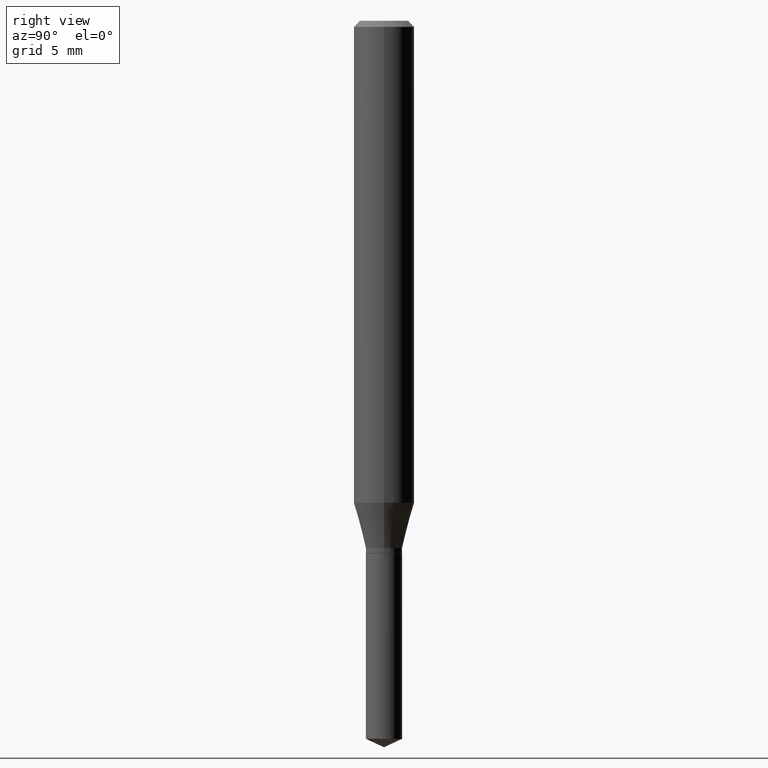
[diagram: clean part render]
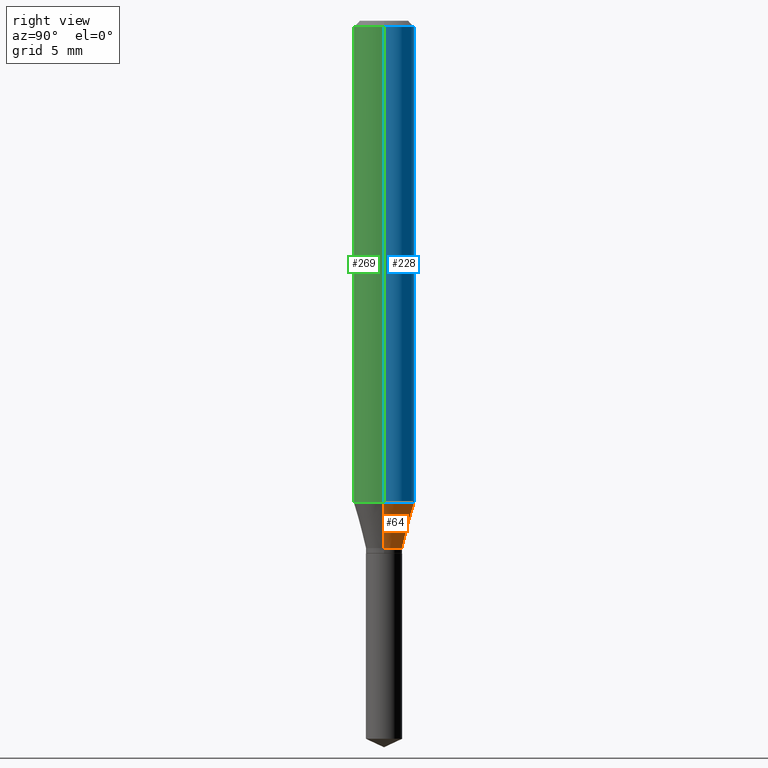
[diagram: same view with three faces highlighted in distinct colors, each labeled with its STEP entity id]
A machine part, right view with three faces highlighted in distinct colors.
Their STEP definitions:

[orange] entity #64 — the highlighted conical surface has half-angle 15 deg.
#6 = ORIENTED_EDGE ( 'NONE', *, *, #439, .T. ) ;
#11 = CARTESIAN_POINT ( 'NONE',  ( 0.03740000000000000269, -4.062687685877884033E-15, -1.088800000000000212 ) ) ;
#23 = VECTOR ( 'NONE', #59, 39.37007874015747433 ) ;
#25 = LINE ( 'NONE', #398, #23 ) ;
#27 = CIRCLE ( 'NONE', #471, 0.03740000000000000269 ) ;
#51 = DIRECTION ( 'NONE',  ( 0.2588190451025213501, 1.565188264969621968E-15, 0.9659258262890682012 ) ) ;
#59 = DIRECTION ( 'NONE',  ( -0.2588190451025213501, 5.211531920934551042E-15, 0.9659258262890682012 ) ) ;
#64 = ADVANCED_FACE ( 'NONE', ( #291 ), #180, .T. ) ;
#108 = EDGE_LOOP ( 'NONE', ( #6, #210, #114, #162 ) ) ;
#109 = VERTEX_POINT ( 'NONE', #185 ) ;
#114 = ORIENTED_EDGE ( 'NONE', *, *, #411, .F. ) ;
#130 = DIRECTION ( 'NONE',  ( 1.000000000000000000, -6.982962677686264344E-15, 0.000000000000000000 ) ) ;
#160 = VERTEX_POINT ( 'NONE', #11 ) ;
#162 = ORIENTED_EDGE ( 'NONE', *, *, #237, .F. ) ;
#180 = CONICAL_SURFACE ( 'NONE', #265, 0.03740000000000000269, 0.2617993877991500740 ) ;
#181 = CIRCLE ( 'NONE', #255, 0.06250000000000012490 ) ;
#185 = CARTESIAN_POINT ( 'NONE',  ( -0.03740000000000000269, -3.554461323720950725E-15, -1.088800000000000212 ) ) ;
#203 = LINE ( 'NONE', #287, #333 ) ;
#210 = ORIENTED_EDGE ( 'NONE', *, *, #262, .T. ) ;
#232 = CARTESIAN_POINT ( 'NONE',  ( 2.662626436174376772E-29, -3.801524881732417633E-15, -1.088800000000000212 ) ) ;
#237 = EDGE_CURVE ( 'NONE', #160, #427, #203, .T. ) ;
#255 = AXIS2_PLACEMENT_3D ( 'NONE', #329, #474, #130 ) ;
#262 = EDGE_CURVE ( 'NONE', #109, #321, #25, .T. ) ;
#265 = AXIS2_PLACEMENT_3D ( 'NONE', #433, #334, #272 ) ;
#272 = DIRECTION ( 'NONE',  ( 1.000000000000000000, -6.982962677686261977E-15, 0.000000000000000000 ) ) ;
#287 = CARTESIAN_POINT ( 'NONE',  ( 0.03740000000000000269, -4.062687685877884033E-15, -1.088800000000000212 ) ) ;
#291 = FACE_OUTER_BOUND ( 'NONE', #108, .T. ) ;
#321 = VERTEX_POINT ( 'NONE', #461 ) ;
#329 = CARTESIAN_POINT ( 'NONE',  ( 2.433548428965882427E-29, -3.474462199401361914E-15, -0.9951255247300211382 ) ) ;
#333 = VECTOR ( 'NONE', #51, 39.37007874015747433 ) ;
#334 = DIRECTION ( 'NONE',  ( -2.445468806185136597E-29, 3.491481338843145583E-15, 1.000000000000000000 ) ) ;
#336 = CARTESIAN_POINT ( 'NONE',  ( 0.06250000000000012490, -3.910897366756753978E-15, -0.9951255247300211382 ) ) ;
#379 = DIRECTION ( 'NONE',  ( -2.445468806185136597E-29, 3.491481338843145583E-15, 1.000000000000000000 ) ) ;
#398 = CARTESIAN_POINT ( 'NONE',  ( -0.03740000000000000269, -3.535781898558140243E-15, -1.088800000000000212 ) ) ;
#401 = DIRECTION ( 'NONE',  ( 1.000000000000000000, -6.982962677686261977E-15, 0.000000000000000000 ) ) ;
#411 = EDGE_CURVE ( 'NONE', #427, #321, #181, .T. ) ;
#427 = VERTEX_POINT ( 'NONE', #336 ) ;
#433 = CARTESIAN_POINT ( 'NONE',  ( 2.662626436174376772E-29, -3.801524881732417633E-15, -1.088800000000000212 ) ) ;
#439 = EDGE_CURVE ( 'NONE', #160, #109, #27, .T. ) ;
#461 = CARTESIAN_POINT ( 'NONE',  ( -0.06250000000000012490, -3.030372989551298509E-15, -0.9951255247300211382 ) ) ;
#471 = AXIS2_PLACEMENT_3D ( 'NONE', #232, #379, #401 ) ;
#474 = DIRECTION ( 'NONE',  ( -2.445468806185136597E-29, 3.491481338843145583E-15, 1.000000000000000000 ) ) ;

[blue] entity #228 — the highlighted cylindrical surface (edge-blend (fillet) strip) has radius 1.5875 mm, axis along (-0, 0, 1).
#14 = CARTESIAN_POINT ( 'NONE',  ( 0.000000000000000000, 0.000000000000000000, 0.000000000000000000 ) ) ;
#16 = AXIS2_PLACEMENT_3D ( 'NONE', #14, #353, #118 ) ;
#35 = EDGE_CURVE ( 'NONE', #427, #44, #368, .T. ) ;
#44 = VERTEX_POINT ( 'NONE', #359 ) ;
#72 = ORIENTED_EDGE ( 'NONE', *, *, #411, .T. ) ;
#77 = EDGE_LOOP ( 'NONE', ( #72, #324, #219, #297 ) ) ;
#82 = LINE ( 'NONE', #209, #365 ) ;
#103 = VECTOR ( 'NONE', #128, 39.37007874015748143 ) ;
#113 = CIRCLE ( 'NONE', #470, 0.06250000000000000000 ) ;
#118 = DIRECTION ( 'NONE',  ( 1.000000000000000000, -6.982962677686267499E-15, 4.876176775795936353E-29 ) ) ;
#125 = EDGE_CURVE ( 'NONE', #44, #198, #113, .T. ) ;
#128 = DIRECTION ( 'NONE',  ( -2.445468806185136877E-29, 3.491481338843145188E-15, 1.000000000000000000 ) ) ;
#130 = DIRECTION ( 'NONE',  ( 1.000000000000000000, -6.982962677686264344E-15, 0.000000000000000000 ) ) ;
#141 = DIRECTION ( 'NONE',  ( 1.000000000000000000, -6.982962677686266711E-15, 0.000000000000000000 ) ) ;
#181 = CIRCLE ( 'NONE', #255, 0.06250000000000012490 ) ;
#194 = FACE_OUTER_BOUND ( 'NONE', #77, .T. ) ;
#198 = VERTEX_POINT ( 'NONE', #259 ) ;
#209 = CARTESIAN_POINT ( 'NONE',  ( -0.06250000000000005551, 4.440892098500630106E-16, -3.074334431409318916E-30 ) ) ;
#219 = ORIENTED_EDGE ( 'NONE', *, *, #125, .F. ) ;
#228 = ADVANCED_FACE ( 'NONE', ( #194 ), #247, .T. ) ;
#247 = CYLINDRICAL_SURFACE ( 'NONE', #16, 0.06250000000000005551 ) ;
#255 = AXIS2_PLACEMENT_3D ( 'NONE', #329, #474, #130 ) ;
#259 = CARTESIAN_POINT ( 'NONE',  ( -0.06250000000000000000, -1.314963648218386938E-15, -0.01250000000000008223 ) ) ;
#297 = ORIENTED_EDGE ( 'NONE', *, *, #35, .F. ) ;
#321 = VERTEX_POINT ( 'NONE', #461 ) ;
#323 = CARTESIAN_POINT ( 'NONE',  ( 0.06250000000000005551, -4.364351673553921131E-16, 3.047610484872463023E-30 ) ) ;
#324 = ORIENTED_EDGE ( 'NONE', *, *, #399, .T. ) ;
#329 = CARTESIAN_POINT ( 'NONE',  ( 2.433548428965882427E-29, -3.474462199401361914E-15, -0.9951255247300211382 ) ) ;
#336 = CARTESIAN_POINT ( 'NONE',  ( 0.06250000000000012490, -3.910897366756753978E-15, -0.9951255247300211382 ) ) ;
#338 = CARTESIAN_POINT ( 'NONE',  ( 3.056836007731440977E-31, -4.364351673553961068E-17, -0.01250000000000008223 ) ) ;
#353 = DIRECTION ( 'NONE',  ( -2.445468806185136597E-29, 3.491481338843145583E-15, 1.000000000000000000 ) ) ;
#359 = CARTESIAN_POINT ( 'NONE',  ( 0.06250000000000000000, -4.800786840909312308E-16, -0.01250000000000008223 ) ) ;
#365 = VECTOR ( 'NONE', #396, 39.37007874015748143 ) ;
#368 = LINE ( 'NONE', #323, #103 ) ;
#396 = DIRECTION ( 'NONE',  ( -2.445468806185136877E-29, 3.491481338843145188E-15, 1.000000000000000000 ) ) ;
#399 = EDGE_CURVE ( 'NONE', #321, #198, #82, .T. ) ;
#411 = EDGE_CURVE ( 'NONE', #427, #321, #181, .T. ) ;
#427 = VERTEX_POINT ( 'NONE', #336 ) ;
#461 = CARTESIAN_POINT ( 'NONE',  ( -0.06250000000000012490, -3.030372989551298509E-15, -0.9951255247300211382 ) ) ;
#470 = AXIS2_PLACEMENT_3D ( 'NONE', #338, #483, #141 ) ;
#474 = DIRECTION ( 'NONE',  ( -2.445468806185136597E-29, 3.491481338843145583E-15, 1.000000000000000000 ) ) ;
#483 = DIRECTION ( 'NONE',  ( -2.445468806185136597E-29, 3.491481338843145583E-15, 1.000000000000000000 ) ) ;

[green] entity #269 — the highlighted cylindrical surface (edge-blend (fillet) strip) has radius 1.5875 mm, axis along (-0, 0, 1).
#5 = EDGE_CURVE ( 'NONE', #321, #427, #157, .T. ) ;
#22 = DIRECTION ( 'NONE',  ( -2.445468806185136597E-29, 3.491481338843145583E-15, 1.000000000000000000 ) ) ;
#30 = DIRECTION ( 'NONE',  ( -2.445468806185136597E-29, 3.491481338843145583E-15, 1.000000000000000000 ) ) ;
#35 = EDGE_CURVE ( 'NONE', #427, #44, #368, .T. ) ;
#44 = VERTEX_POINT ( 'NONE', #359 ) ;
#57 = CARTESIAN_POINT ( 'NONE',  ( 2.433548428965882427E-29, -3.474462199401361914E-15, -0.9951255247300211382 ) ) ;
#79 = ORIENTED_EDGE ( 'NONE', *, *, #399, .F. ) ;
#82 = LINE ( 'NONE', #209, #365 ) ;
#103 = VECTOR ( 'NONE', #128, 39.37007874015748143 ) ;
#111 = EDGE_LOOP ( 'NONE', ( #79, #119, #464, #257 ) ) ;
#119 = ORIENTED_EDGE ( 'NONE', *, *, #5, .T. ) ;
#128 = DIRECTION ( 'NONE',  ( -2.445468806185136877E-29, 3.491481338843145188E-15, 1.000000000000000000 ) ) ;
#157 = CIRCLE ( 'NONE', #326, 0.06250000000000012490 ) ;
#171 = DIRECTION ( 'NONE',  ( 1.000000000000000000, -6.982962677686266711E-15, 0.000000000000000000 ) ) ;
#179 = CARTESIAN_POINT ( 'NONE',  ( 0.000000000000000000, 0.000000000000000000, 0.000000000000000000 ) ) ;
#198 = VERTEX_POINT ( 'NONE', #259 ) ;
#200 = DIRECTION ( 'NONE',  ( -2.445468806185136597E-29, 3.491481338843145583E-15, 1.000000000000000000 ) ) ;
#209 = CARTESIAN_POINT ( 'NONE',  ( -0.06250000000000005551, 4.440892098500630106E-16, -3.074334431409318916E-30 ) ) ;
#220 = CARTESIAN_POINT ( 'NONE',  ( 3.056836007731440977E-31, -4.364351673553961068E-17, -0.01250000000000008223 ) ) ;
#257 = ORIENTED_EDGE ( 'NONE', *, *, #443, .F. ) ;
#259 = CARTESIAN_POINT ( 'NONE',  ( -0.06250000000000000000, -1.314963648218386938E-15, -0.01250000000000008223 ) ) ;
#260 = DIRECTION ( 'NONE',  ( 1.000000000000000000, -6.982962677686264344E-15, 0.000000000000000000 ) ) ;
#269 = ADVANCED_FACE ( 'NONE', ( #370 ), #381, .T. ) ;
#285 = AXIS2_PLACEMENT_3D ( 'NONE', #179, #30, #342 ) ;
#305 = AXIS2_PLACEMENT_3D ( 'NONE', #220, #22, #171 ) ;
#321 = VERTEX_POINT ( 'NONE', #461 ) ;
#323 = CARTESIAN_POINT ( 'NONE',  ( 0.06250000000000005551, -4.364351673553921131E-16, 3.047610484872463023E-30 ) ) ;
#326 = AXIS2_PLACEMENT_3D ( 'NONE', #57, #200, #260 ) ;
#336 = CARTESIAN_POINT ( 'NONE',  ( 0.06250000000000012490, -3.910897366756753978E-15, -0.9951255247300211382 ) ) ;
#342 = DIRECTION ( 'NONE',  ( 1.000000000000000000, -6.982962677686267499E-15, 4.876176775795936353E-29 ) ) ;
#359 = CARTESIAN_POINT ( 'NONE',  ( 0.06250000000000000000, -4.800786840909312308E-16, -0.01250000000000008223 ) ) ;
#365 = VECTOR ( 'NONE', #396, 39.37007874015748143 ) ;
#368 = LINE ( 'NONE', #323, #103 ) ;
#370 = FACE_OUTER_BOUND ( 'NONE', #111, .T. ) ;
#381 = CYLINDRICAL_SURFACE ( 'NONE', #285, 0.06250000000000005551 ) ;
#396 = DIRECTION ( 'NONE',  ( -2.445468806185136877E-29, 3.491481338843145188E-15, 1.000000000000000000 ) ) ;
#399 = EDGE_CURVE ( 'NONE', #321, #198, #82, .T. ) ;
#427 = VERTEX_POINT ( 'NONE', #336 ) ;
#438 = CIRCLE ( 'NONE', #305, 0.06250000000000000000 ) ;
#443 = EDGE_CURVE ( 'NONE', #198, #44, #438, .T. ) ;
#461 = CARTESIAN_POINT ( 'NONE',  ( -0.06250000000000012490, -3.030372989551298509E-15, -0.9951255247300211382 ) ) ;
#464 = ORIENTED_EDGE ( 'NONE', *, *, #35, .T. ) ;